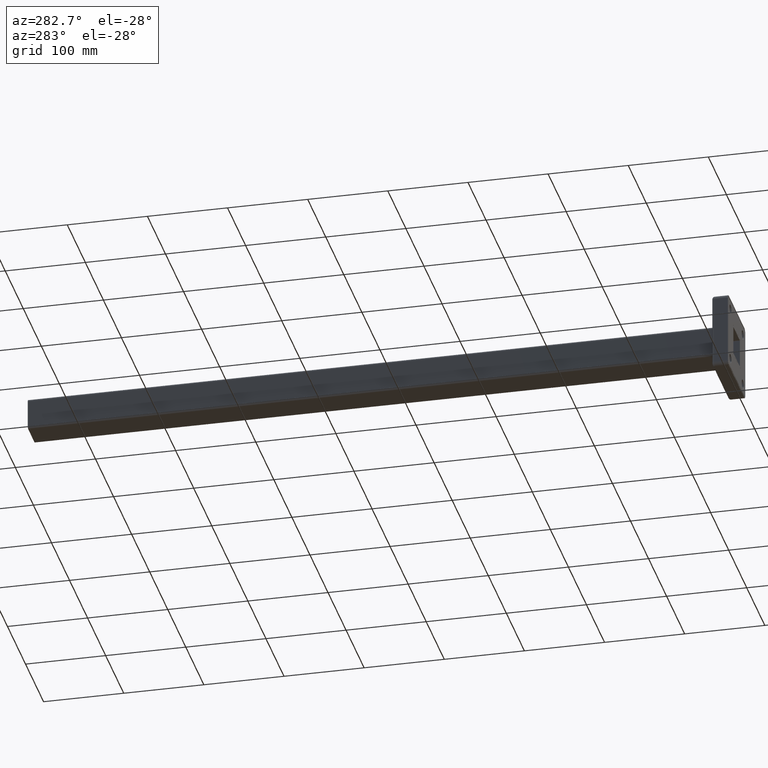
[diagram: clean part render]
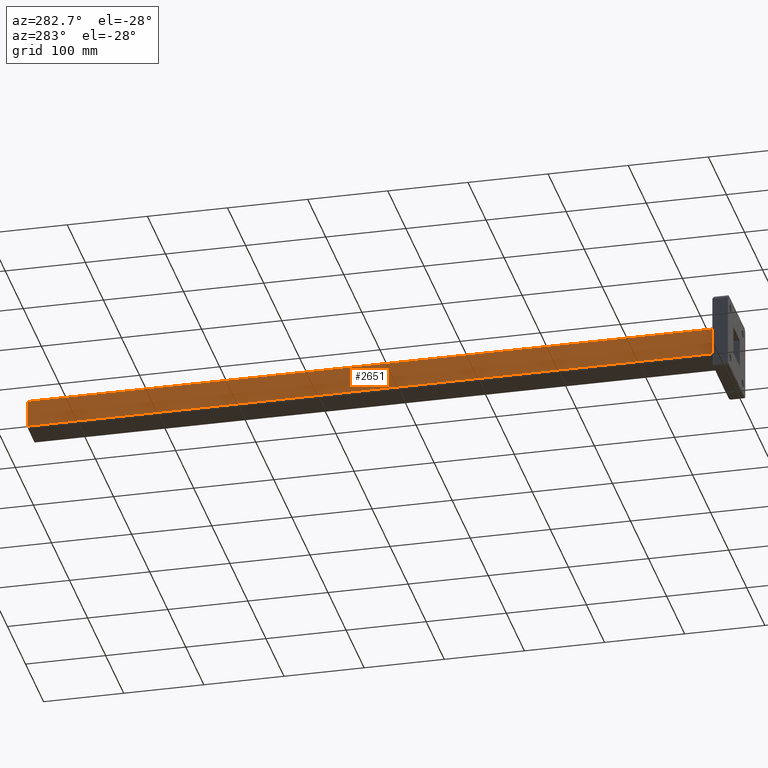
[diagram: same view with one face highlighted and labeled with its STEP entity id]
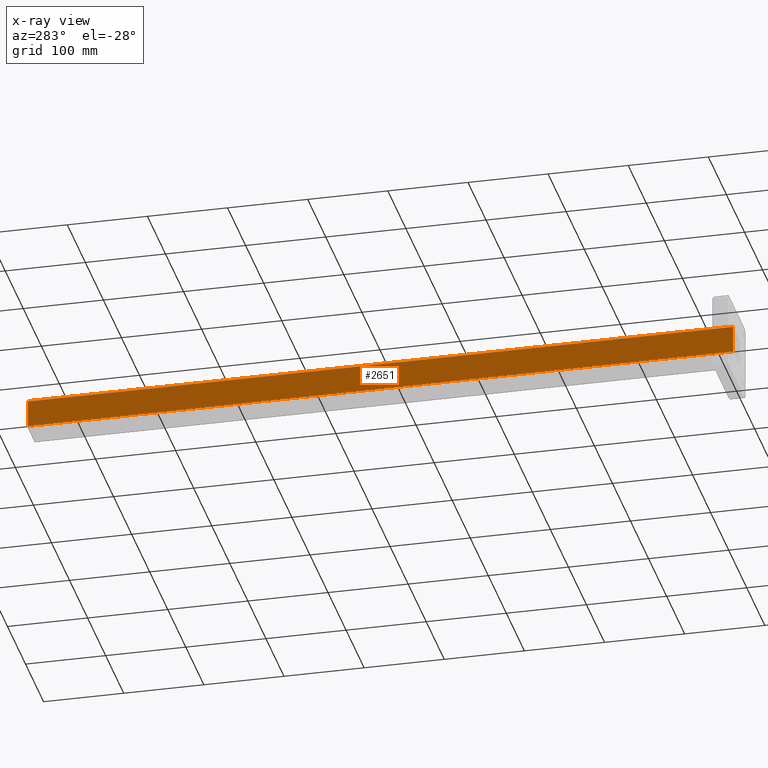
[diagram: x-ray of the same camera — body ghosted, the highlighted face saturated]
A machine part, auxiliary view. The second image highlights one B-rep face of the part: STEP entity #2651.
The next image is the same camera in x-ray: the body ghosted, the highlighted face saturated — about 0% of this face is hidden behind the body in this view.
In plain terms, the highlighted planar face has unit normal (1, 0, -0).
Its self-contained STEP definition (entity closure, byte-faithful):
#42 = LINE ( 'NONE', #2834, #1001 ) ;
#45 = CARTESIAN_POINT ( 'NONE',  ( -19.99999999999999600, 880.0000000000000000, 17.00000000000000000 ) ) ;
#67 = EDGE_CURVE ( 'NONE', #170, #1700, #198, .T. ) ;
#170 = VERTEX_POINT ( 'NONE', #639 ) ;
#198 = LINE ( 'NONE', #2989, #3836 ) ;
#483 = DIRECTION ( 'NONE',  ( -1.734723475976807300E-016, 0.0000000000000000000, -1.000000000000000000 ) ) ;
#564 = VERTEX_POINT ( 'NONE', #814 ) ;
#639 = CARTESIAN_POINT ( 'NONE',  ( -20.00000000000000400, 880.0000000000000000, -17.00000000000000400 ) ) ;
#814 = CARTESIAN_POINT ( 'NONE',  ( -19.99999999999999600, 0.0000000000000000000, 17.00000000000000000 ) ) ;
#909 = LINE ( 'NONE', #1558, #2917 ) ;
#919 = EDGE_CURVE ( 'NONE', #1700, #564, #42, .T. ) ;
#1001 = VECTOR ( 'NONE', #1591, 1000.000000000000000 ) ;
#1063 = ORIENTED_EDGE ( 'NONE', *, *, #1453, .F. ) ;
#1177 = EDGE_LOOP ( 'NONE', ( #2565, #2658, #1063, #2605 ) ) ;
#1255 = EDGE_CURVE ( 'NONE', #564, #2117, #1702, .T. ) ;
#1446 = CARTESIAN_POINT ( 'NONE',  ( -19.99999999999999600, 880.0000000000000000, 17.00000000000000000 ) ) ;
#1453 = EDGE_CURVE ( 'NONE', #170, #2117, #909, .T. ) ;
#1547 = DIRECTION ( 'NONE',  ( -0.0000000000000000000, 1.000000000000000000, -0.0000000000000000000 ) ) ;
#1558 = CARTESIAN_POINT ( 'NONE',  ( -20.00000000000000400, 880.0000000000000000, -20.00000000000000400 ) ) ;
#1591 = DIRECTION ( 'NONE',  ( 1.734723475976807100E-016, 0.0000000000000000000, 1.000000000000000000 ) ) ;
#1656 = PLANE ( 'NONE',  #2493 ) ;
#1700 = VERTEX_POINT ( 'NONE', #2136 ) ;
#1702 = LINE ( 'NONE', #45, #2193 ) ;
#2117 = VERTEX_POINT ( 'NONE', #1446 ) ;
#2136 = CARTESIAN_POINT ( 'NONE',  ( -20.00000000000000400, 0.0000000000000000000, -17.00000000000000400 ) ) ;
#2193 = VECTOR ( 'NONE', #1547, 1000.000000000000000 ) ;
#2209 = DIRECTION ( 'NONE',  ( 1.734723475976807100E-016, 0.0000000000000000000, 1.000000000000000000 ) ) ;
#2273 = DIRECTION ( 'NONE',  ( 1.000000000000000000, 0.0000000000000000000, -1.734723475976807300E-016 ) ) ;
#2493 = AXIS2_PLACEMENT_3D ( 'NONE', #3828, #2273, #483 ) ;
#2565 = ORIENTED_EDGE ( 'NONE', *, *, #919, .T. ) ;
#2605 = ORIENTED_EDGE ( 'NONE', *, *, #67, .T. ) ;
#2651 = ADVANCED_FACE ( 'NONE', ( #3578 ), #1656, .F. ) ;
#2658 = ORIENTED_EDGE ( 'NONE', *, *, #1255, .T. ) ;
#2834 = CARTESIAN_POINT ( 'NONE',  ( -20.00000000000000400, 0.0000000000000000000, -20.00000000000000400 ) ) ;
#2917 = VECTOR ( 'NONE', #2209, 1000.000000000000000 ) ;
#2989 = CARTESIAN_POINT ( 'NONE',  ( -20.00000000000000400, 880.0000000000000000, -17.00000000000000400 ) ) ;
#3578 = FACE_OUTER_BOUND ( 'NONE', #1177, .T. ) ;
#3646 = DIRECTION ( 'NONE',  ( 0.0000000000000000000, -1.000000000000000000, 0.0000000000000000000 ) ) ;
#3828 = CARTESIAN_POINT ( 'NONE',  ( -20.00000000000000400, 880.0000000000000000, -20.00000000000000400 ) ) ;
#3836 = VECTOR ( 'NONE', #3646, 1000.000000000000000 ) ;